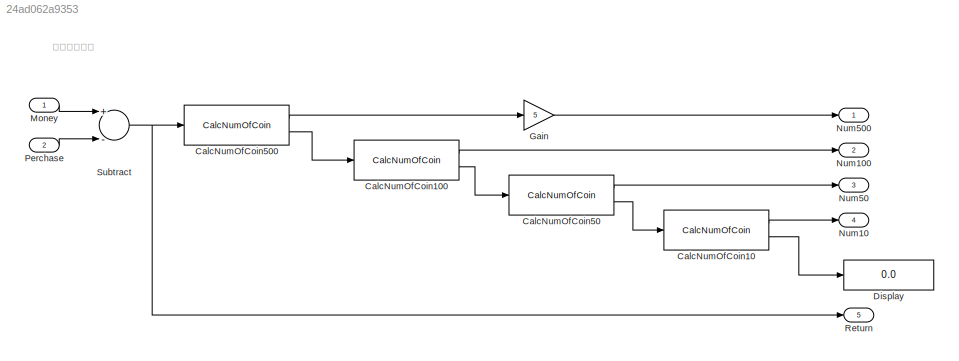
MODEL slx_24ad062a9353
KIND model
CONFIG AbsTol = auto
CONFIG EnableMultiTasking = on
CONFIG FixedStep = 0.1
CONFIG MaxStep = auto
CONFIG MinStep = auto
CONFIG RelTol = 1e-3
CONFIG SampleTimeConstraint = Unconstrained
CONFIG Solver = FixedStepDiscrete
CONFIG SolverName = FixedStepDiscrete
CONFIG StartTime = 0.0
CONFIG StopTime = 1000
BLOCK [Reference] CalcNumOfCoin10  REF=GroupLib/CalcNumOfCoin
  Ports = [1, 2]
  SourceBlock = GroupLib/CalcNumOfCoin
BLOCK [Reference] CalcNumOfCoin100  REF=GroupLib/CalcNumOfCoin
  Ports = [1, 2]
  SourceBlock = GroupLib/CalcNumOfCoin
BLOCK [Reference] CalcNumOfCoin50  REF=GroupLib/CalcNumOfCoin
  Ports = [1, 2]
  SourceBlock = GroupLib/CalcNumOfCoin
BLOCK [Reference] CalcNumOfCoin500  REF=GroupLib/CalcNumOfCoin
  Ports = [1, 2]
  SourceBlock = GroupLib/CalcNumOfCoin
BLOCK [Display] Display
  Decimation = 1
  Ports = [1]
BLOCK [Gain] Gain
  Gain = 5
  OutDataTypeStr = Inherit: Inherit via internal rule
  ParamDataTypeStr = Inherit: Inherit via internal rule
  SaturateOnIntegerOverflow = off
BLOCK [Inport] Money
  IconDisplay = Port number
  OutDataTypeStr = uint16
  PortDimensions = 1
  SamplingMode = Sample based
BLOCK [Outport] Num10
  IconDisplay = Port number
  OutDataTypeStr = uint16
  Port = 4
  PortDimensions = 1
  SamplingMode = Sample based
  SignalType = real
BLOCK [Outport] Num100
  IconDisplay = Port number
  OutDataTypeStr = uint16
  Port = 2
  PortDimensions = 1
  SamplingMode = Sample based
  SignalType = real
BLOCK [Outport] Num50
  IconDisplay = Port number
  OutDataTypeStr = uint16
  Port = 3
  PortDimensions = 1
  SamplingMode = Sample based
  SignalType = real
BLOCK [Outport] Num500
  IconDisplay = Port number
  OutDataTypeStr = uint16
  PortDimensions = 1
  SamplingMode = Sample based
  SignalType = real
BLOCK [Inport] Perchase
  IconDisplay = Port number
  OutDataTypeStr = uint16
  Port = 2
  PortDimensions = 1
  SamplingMode = Sample based
BLOCK [Outport] Return
  IconDisplay = Port number
  OutDataTypeStr = uint16
  Port = 5
  PortDimensions = 1
  SamplingMode = Sample based
  SignalType = real
BLOCK [Sum] Subtract
  InputSameDT = off
  Inputs = +-
  OutDataTypeStr = Inherit: Inherit via internal rule
  Ports = [2, 1]
  SaturateOnIntegerOverflow = off
ANNOTATION (root): お釣りを計算
LINE CalcNumOfCoin100:1 -> Num100:1
LINE CalcNumOfCoin100:2 -> CalcNumOfCoin50:1
LINE CalcNumOfCoin10:1 -> Num10:1
LINE CalcNumOfCoin10:2 -> Display:1
LINE CalcNumOfCoin500:1 -> Gain:1
LINE CalcNumOfCoin500:2 -> CalcNumOfCoin100:1
LINE CalcNumOfCoin50:1 -> Num50:1
LINE CalcNumOfCoin50:2 -> CalcNumOfCoin10:1
LINE Gain:1 -> Num500:1
LINE Money:1 -> Subtract:1
LINE Perchase:1 -> Subtract:2
NET Subtract:1 -> CalcNumOfCoin500:1, Return:1
note: NET lines group one-source signal fan-out (src -> all destinations, sorted); 1:1 wires keep LINE
